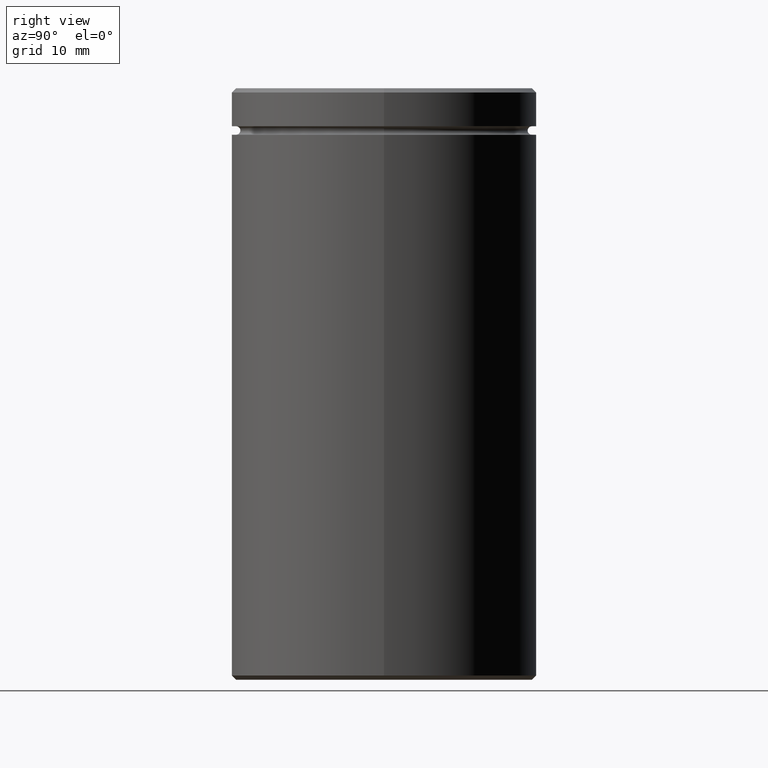
[diagram: clean part render]
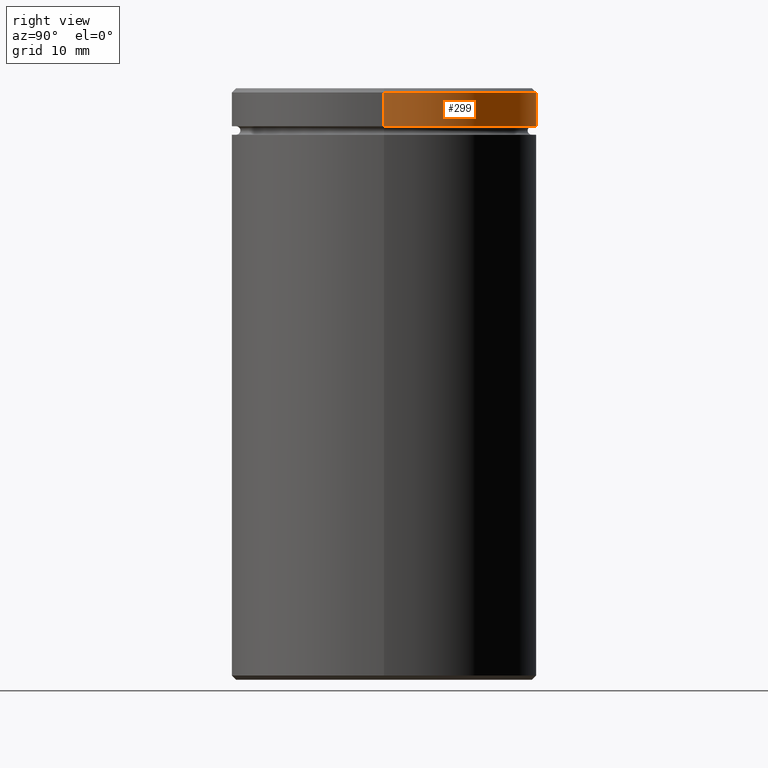
[diagram: same view with one face highlighted and labeled with its STEP entity id]
A machine part, right view. The second image highlights one B-rep face of the part: STEP entity #299.
In plain terms, the highlighted cylindrical surface (partial cylindrical patch) has radius 18 mm, axis along (-0, -0, 1).
Its self-contained STEP definition (entity closure, byte-faithful):
#22 = ORIENTED_EDGE ( 'NONE', *, *, #480, .F. ) ;
#38 = CIRCLE ( 'NONE', #94, 18.00000000000000000 ) ;
#43 = DIRECTION ( 'NONE',  ( -0.000000000000000000, -0.000000000000000000, 1.000000000000000000 ) ) ;
#59 = DIRECTION ( 'NONE',  ( -0.000000000000000000, -0.000000000000000000, 1.000000000000000000 ) ) ;
#61 = CARTESIAN_POINT ( 'NONE',  ( 0.000000000000000000, 0.000000000000000000, -0.5000000000000177636 ) ) ;
#79 = CARTESIAN_POINT ( 'NONE',  ( 18.00000000000000000, 0.000000000000000000, 0.000000000000000000 ) ) ;
#91 = CARTESIAN_POINT ( 'NONE',  ( 0.000000000000000000, 0.000000000000000000, -4.500000000000000888 ) ) ;
#94 = AXIS2_PLACEMENT_3D ( 'NONE', #61, #427, #559 ) ;
#115 = CARTESIAN_POINT ( 'NONE',  ( -18.00000000000000000, 2.204364238465235428E-15, -0.5000000000000177636 ) ) ;
#126 = EDGE_CURVE ( 'NONE', #199, #384, #38, .T. ) ;
#134 = VERTEX_POINT ( 'NONE', #557 ) ;
#144 = CARTESIAN_POINT ( 'NONE',  ( 18.00000000000000000, 0.000000000000000000, -0.5000000000000177636 ) ) ;
#154 = AXIS2_PLACEMENT_3D ( 'NONE', #360, #411, #456 ) ;
#175 = VECTOR ( 'NONE', #59, 1000.000000000000000 ) ;
#183 = AXIS2_PLACEMENT_3D ( 'NONE', #91, #241, #230 ) ;
#185 = CYLINDRICAL_SURFACE ( 'NONE', #154, 18.00000000000000000 ) ;
#199 = VERTEX_POINT ( 'NONE', #115 ) ;
#230 = DIRECTION ( 'NONE',  ( 1.000000000000000000, 0.000000000000000000, 0.000000000000000000 ) ) ;
#241 = DIRECTION ( 'NONE',  ( -0.000000000000000000, -0.000000000000000000, 1.000000000000000000 ) ) ;
#277 = EDGE_CURVE ( 'NONE', #505, #134, #561, .T. ) ;
#280 = ORIENTED_EDGE ( 'NONE', *, *, #126, .T. ) ;
#294 = CARTESIAN_POINT ( 'NONE',  ( 18.00000000000000000, 0.000000000000000000, -4.500000000000000888 ) ) ;
#299 = ADVANCED_FACE ( 'NONE', ( #449 ), #185, .T. ) ;
#304 = LINE ( 'NONE', #79, #317 ) ;
#305 = ORIENTED_EDGE ( 'NONE', *, *, #364, .T. ) ;
#317 = VECTOR ( 'NONE', #43, 1000.000000000000000 ) ;
#336 = LINE ( 'NONE', #500, #175 ) ;
#360 = CARTESIAN_POINT ( 'NONE',  ( 0.000000000000000000, 0.000000000000000000, 0.000000000000000000 ) ) ;
#364 = EDGE_CURVE ( 'NONE', #134, #199, #336, .T. ) ;
#384 = VERTEX_POINT ( 'NONE', #144 ) ;
#411 = DIRECTION ( 'NONE',  ( -0.000000000000000000, -0.000000000000000000, 1.000000000000000000 ) ) ;
#427 = DIRECTION ( 'NONE',  ( 0.000000000000000000, 0.000000000000000000, -1.000000000000000000 ) ) ;
#449 = FACE_OUTER_BOUND ( 'NONE', #544, .T. ) ;
#456 = DIRECTION ( 'NONE',  ( 1.000000000000000000, 0.000000000000000000, 0.000000000000000000 ) ) ;
#480 = EDGE_CURVE ( 'NONE', #505, #384, #304, .T. ) ;
#500 = CARTESIAN_POINT ( 'NONE',  ( -18.00000000000000000, 2.204364238465235428E-15, 0.000000000000000000 ) ) ;
#505 = VERTEX_POINT ( 'NONE', #294 ) ;
#525 = ORIENTED_EDGE ( 'NONE', *, *, #277, .T. ) ;
#544 = EDGE_LOOP ( 'NONE', ( #525, #305, #280, #22 ) ) ;
#557 = CARTESIAN_POINT ( 'NONE',  ( -18.00000000000000000, 2.204364238465235428E-15, -4.500000000000000888 ) ) ;
#559 = DIRECTION ( 'NONE',  ( 1.000000000000000000, 0.000000000000000000, 0.000000000000000000 ) ) ;
#561 = CIRCLE ( 'NONE', #183, 18.00000000000000000 ) ;